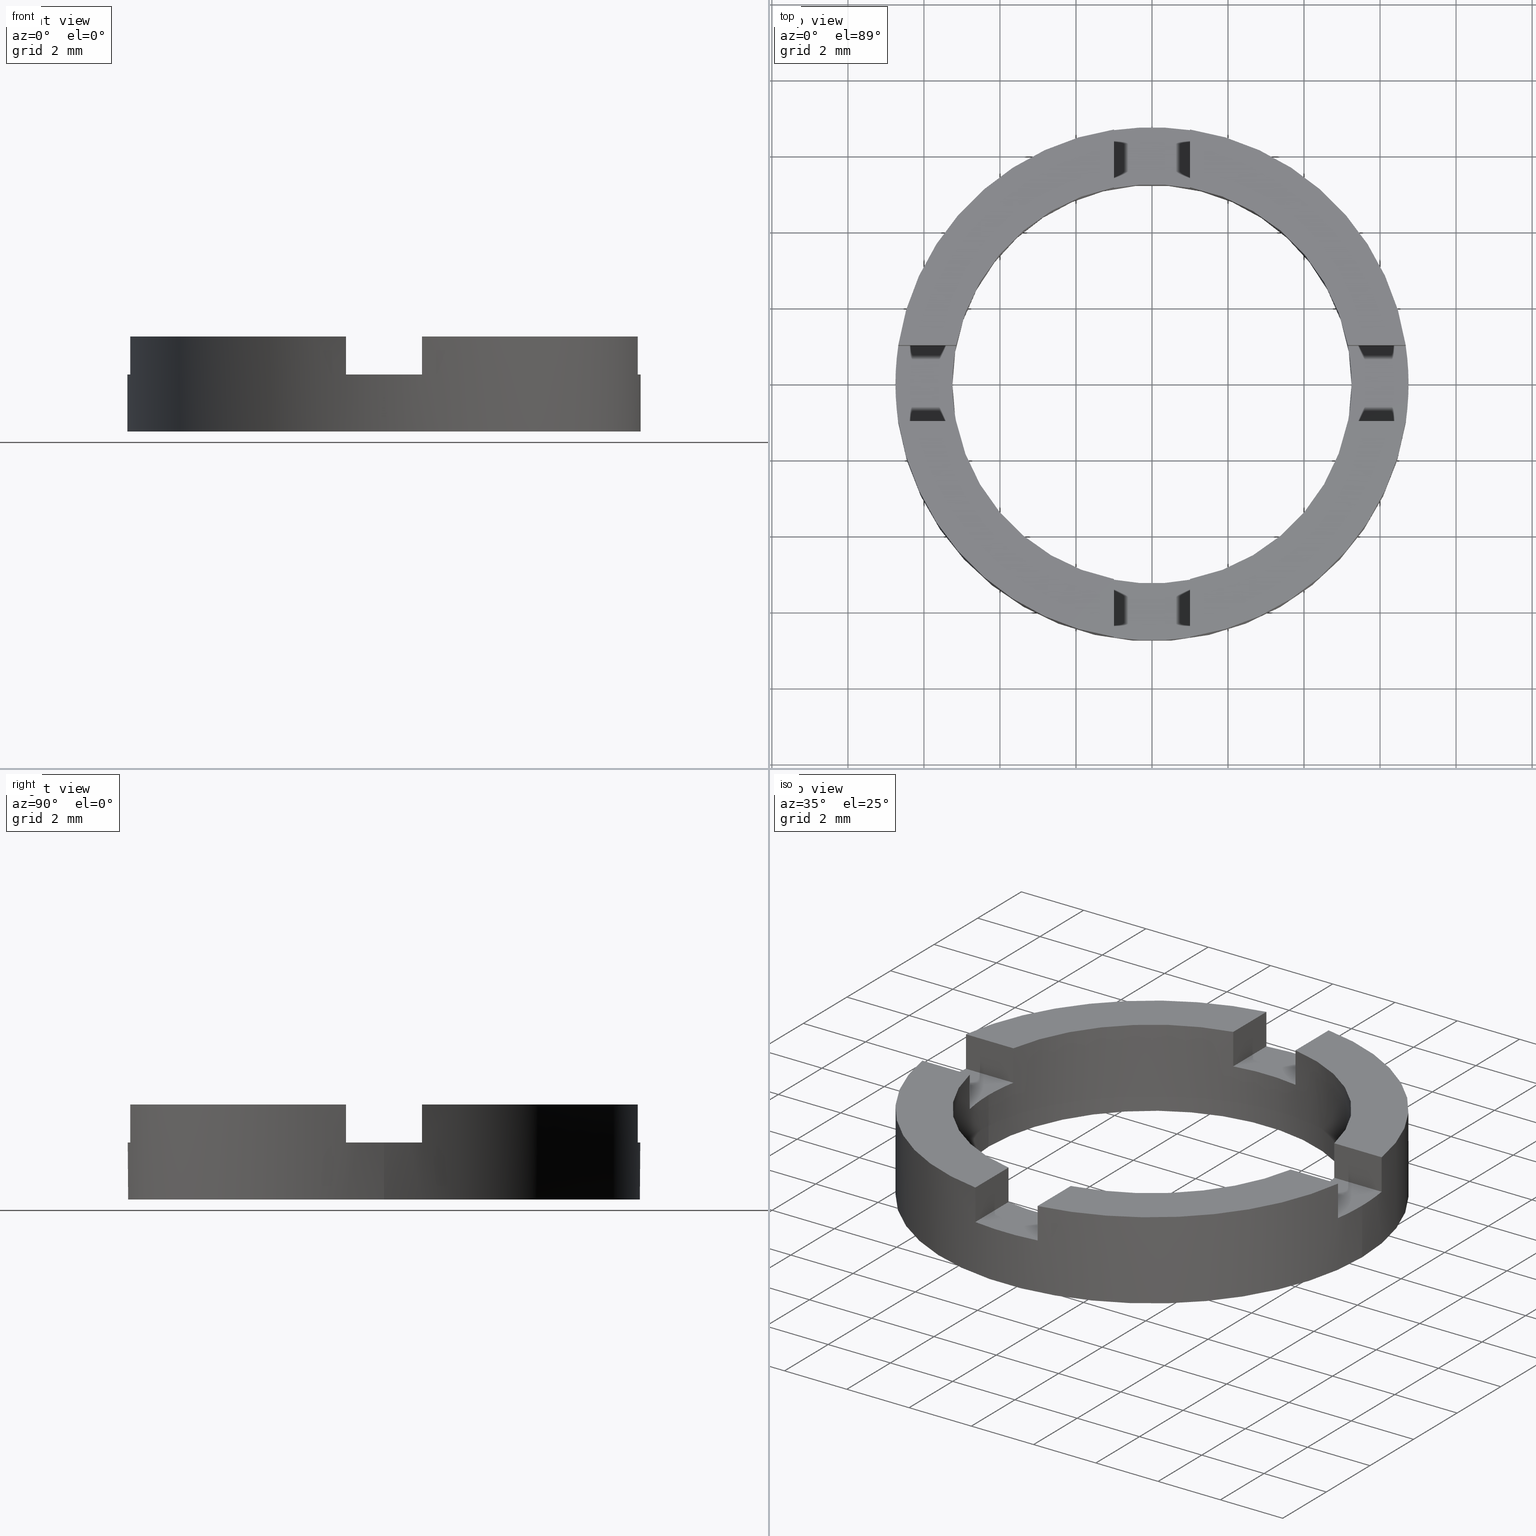
[diagram: canonical four-view strip — front | top / right | iso, engineering-drawing reading convention]
A machine part, canonical four-view strip (front | top / right | iso — engineering-drawing reading convention). The complete STEP part file that produces these views, byte-faithful:
ISO-10303-21;
HEADER;
FILE_DESCRIPTION (( 'STEP AP203' ),
    '1' );
FILE_NAME ('514034.step',
    '2024-12-26T02:31:14',
    ( 'MSI' ),
    ( '' ),
    'SwSTEP 2.0',
    'SolidWorks 2020',
    '' );
FILE_SCHEMA (( 'CONFIG_CONTROL_DESIGN' ));
ENDSEC;

DATA;
#1 = PERSON_AND_ORGANIZATION ( #391, #385 ) ;
#2 = COORDINATED_UNIVERSAL_TIME_OFFSET ( 8, 0, .AHEAD. ) ;
#3 = DIRECTION ( 'NONE',  ( 0.000000000000000000, 0.000000000000000000, 1.000000000000000000 ) ) ;
#4 = SHAPE_DEFINITION_REPRESENTATION ( #725, #18 ) ;
#5 = DIRECTION ( 'NONE',  ( -0.000000000000000000, -0.000000000000000000, 1.000000000000000000 ) ) ;
#6 = DATE_AND_TIME ( #531, #284 ) ;
#7 = CALENDAR_DATE ( 2024, 26, 12 ) ;
#8 = EDGE_CURVE ( 'NONE', #459, #230, #312, .T. ) ;
#9 = COORDINATED_UNIVERSAL_TIME_OFFSET ( 8, 0, .AHEAD. ) ;
#10 = DIRECTION ( 'NONE',  ( -0.000000000000000000, -0.000000000000000000, 1.000000000000000000 ) ) ;
#11 = APPROVAL_PERSON_ORGANIZATION ( #517, #501, #255 ) ;
#12 = DIRECTION ( 'NONE',  ( 1.000000000000000000, -3.726443022468696137E-15, 0.000000000000000000 ) ) ;
#13 = ADVANCED_FACE ( 'NONE', ( #46 ), #314, .F. ) ;
#14 = PLANE ( 'NONE',  #23 ) ;
#15 = PERSON_AND_ORGANIZATION ( #391, #385 ) ;
#16 = AXIS2_PLACEMENT_3D ( 'NONE', #192, #484, #525 ) ;
#17 = DATE_AND_TIME ( #512, #523 ) ;
#18 = ADVANCED_BREP_SHAPE_REPRESENTATION ( '514034', ( #499, #781 ), #626 ) ;
#19 = DIRECTION ( 'NONE',  ( 0.000000000000000000, 0.000000000000000000, 1.000000000000000000 ) ) ;
#20 = DATE_AND_TIME ( #270, #529 ) ;
#21 = DIRECTION ( 'NONE',  ( 1.000000000000000000, 0.000000000000000000, 0.000000000000000000 ) ) ;
#22 = DIRECTION ( 'NONE',  ( 1.000000000000000000, 0.000000000000000000, 0.000000000000000000 ) ) ;
#23 = AXIS2_PLACEMENT_3D ( 'NONE', #67, #147, #206 ) ;
#24 = CARTESIAN_POINT ( 'NONE',  ( 0.000000000000000000, 0.000000000000000000, 1.500000000000000000 ) ) ;
#25 = DIRECTION ( 'NONE',  ( 1.000000000000000000, 0.000000000000000000, 0.000000000000000000 ) ) ;
#26 = DIRECTION ( 'NONE',  ( 0.000000000000000000, -0.000000000000000000, -1.000000000000000000 ) ) ;
#27 = DIRECTION ( 'NONE',  ( 1.000000000000000000, -3.726443022468696137E-15, 0.000000000000000000 ) ) ;
#28 = CARTESIAN_POINT ( 'NONE',  ( -3.726443022468700081E-15, -1.000000000000001110, 1.500000000000000000 ) ) ;
#29 = EDGE_CURVE ( 'NONE', #228, #414, #557, .T. ) ;
#30 = DIRECTION ( 'NONE',  ( 1.000000000000000000, 0.000000000000000000, 0.000000000000000000 ) ) ;
#31 = CARTESIAN_POINT ( 'NONE',  ( 1.000000000000001332, 5.153882032022075066, 1.500000000000000000 ) ) ;
#32 = CC_DESIGN_PERSON_AND_ORGANIZATION_ASSIGNMENT ( #533, #247, ( #417 ) ) ;
#33 = DIRECTION ( 'NONE',  ( 1.000000000000000000, 0.000000000000000000, 0.000000000000000000 ) ) ;
#34 = AXIS2_PLACEMENT_3D ( 'NONE', #264, #398, #759 ) ;
#35 = EDGE_CURVE ( 'NONE', #691, #446, #556, .T. ) ;
#36 = CARTESIAN_POINT ( 'NONE',  ( 0.000000000000000000, 0.000000000000000000, 2.500000000000000000 ) ) ;
#37 = CARTESIAN_POINT ( 'NONE',  ( -5.250000000000000000, 0.000000000000000000, 0.000000000000000000 ) ) ;
#38 = VERTEX_POINT ( 'NONE', #301 ) ;
#39 = ORIENTED_EDGE ( 'NONE', *, *, #464, .F. ) ;
#40 = PLANE ( 'NONE',  #183 ) ;
#41 = FACE_BOUND ( 'NONE', #489, .T. ) ;
#42 = DIRECTION ( 'NONE',  ( -0.000000000000000000, -0.000000000000000000, 1.000000000000000000 ) ) ;
#43 = AXIS2_PLACEMENT_3D ( 'NONE', #646, #766, #162 ) ;
#44 = LINE ( 'NONE', #652, #329 ) ;
#45 = CIRCLE ( 'NONE', #547, 6.750000000000000000 ) ;
#46 = FACE_OUTER_BOUND ( 'NONE', #719, .T. ) ;
#47 = CARTESIAN_POINT ( 'NONE',  ( 0.000000000000000000, 0.000000000000000000, 1.500000000000000000 ) ) ;
#48 = LINE ( 'NONE', #218, #54 ) ;
#49 = VECTOR ( 'NONE', #491, 1000.000000000000000 ) ;
#50 = CC_DESIGN_SECURITY_CLASSIFICATION ( #577, ( #417 ) ) ;
#51 = VECTOR ( 'NONE', #27, 1000.000000000000000 ) ;
#52 = CARTESIAN_POINT ( 'NONE',  ( -3.726443022468700081E-15, -1.000000000000001110, 1.500000000000000000 ) ) ;
#53 = CC_DESIGN_PERSON_AND_ORGANIZATION_ASSIGNMENT ( #128, #302, ( #672 ) ) ;
#54 = VECTOR ( 'NONE', #160, 1000.000000000000000 ) ;
#55 = AXIS2_PLACEMENT_3D ( 'NONE', #100, #286, #506 ) ;
#56 = FACE_OUTER_BOUND ( 'NONE', #714, .T. ) ;
#57 = LINE ( 'NONE', #92, #328 ) ;
#58 = CIRCLE ( 'NONE', #34, 6.750000000000000000 ) ;
#59 = ADVANCED_FACE ( 'NONE', ( #576, #41 ), #14, .F. ) ;
#60 = FACE_OUTER_BOUND ( 'NONE', #146, .T. ) ;
#61 = APPROVAL_STATUS ( 'not_yet_approved' ) ;
#62 = LINE ( 'NONE', #161, #587 ) ;
#63 = PLANE ( 'NONE',  #540 ) ;
#64 = LINE ( 'NONE', #761, #51 ) ;
#65 = ORIENTED_EDGE ( 'NONE', *, *, #496, .T. ) ;
#66 = EDGE_CURVE ( 'NONE', #450, #174, #588, .T. ) ;
#67 = CARTESIAN_POINT ( 'NONE',  ( 0.000000000000000000, 0.000000000000000000, 0.000000000000000000 ) ) ;
#68 = FACE_OUTER_BOUND ( 'NONE', #486, .T. ) ;
#69 = EDGE_CURVE ( 'NONE', #336, #621, #58, .T. ) ;
#70 = DIRECTION ( 'NONE',  ( 0.000000000000000000, 0.000000000000000000, 1.000000000000000000 ) ) ;
#71 = VECTOR ( 'NONE', #141, 1000.000000000000000 ) ;
#72 = DIRECTION ( 'NONE',  ( 1.000000000000000000, 0.000000000000000000, -0.000000000000000000 ) ) ;
#73 = CYLINDRICAL_SURFACE ( 'NONE', #420, 5.250000000000000000 ) ;
#74 = VERTEX_POINT ( 'NONE', #554 ) ;
#75 = VECTOR ( 'NONE', #412, 1000.000000000000000 ) ;
#76 = DIRECTION ( 'NONE',  ( -0.000000000000000000, 0.000000000000000000, 1.000000000000000000 ) ) ;
#77 = VECTOR ( 'NONE', #776, 1000.000000000000000 ) ;
#78 = ORIENTED_EDGE ( 'NONE', *, *, #294, .F. ) ;
#79 = CC_DESIGN_DATE_AND_TIME_ASSIGNMENT ( #20, #252, ( #577 ) ) ;
#80 = VECTOR ( 'NONE', #235, 1000.000000000000000 ) ;
#81 = EDGE_LOOP ( 'NONE', ( #78, #720, #717, #387 ) ) ;
#82 = AXIS2_PLACEMENT_3D ( 'NONE', #747, #19, #764 ) ;
#83 = EDGE_CURVE ( 'NONE', #589, #209, #563, .T. ) ;
#84 = VECTOR ( 'NONE', #10, 1000.000000000000000 ) ;
#85 = EDGE_LOOP ( 'NONE', ( #687, #718, #748, #671 ) ) ;
#86 = CARTESIAN_POINT ( 'NONE',  ( 1.000000000000001332, 0.000000000000000000, 1.500000000000000000 ) ) ;
#87 = DIRECTION ( 'NONE',  ( -0.000000000000000000, -0.000000000000000000, 1.000000000000000000 ) ) ;
#88 = LINE ( 'NONE', #655, #118 ) ;
#89 = CARTESIAN_POINT ( 'NONE',  ( -0.9999999999999986677, -5.153882032022075954, 1.500000000000000000 ) ) ;
#90 = LINE ( 'NONE', #737, #84 ) ;
#91 = CIRCLE ( 'NONE', #692, 5.250000000000000000 ) ;
#92 = CARTESIAN_POINT ( 'NONE',  ( 5.250000000000000000, 6.429395695523604153E-16, 2.500000000000000000 ) ) ;
#93 = LINE ( 'NONE', #280, #635 ) ;
#94 = LINE ( 'NONE', #180, #602 ) ;
#95 = EDGE_LOOP ( 'NONE', ( #184, #704, #429, #188, #585, #220 ) ) ;
#96 = VECTOR ( 'NONE', #667, 1000.000000000000000 ) ;
#97 = AXIS2_PLACEMENT_3D ( 'NONE', #679, #195, #253 ) ;
#98 = FACE_OUTER_BOUND ( 'NONE', #122, .T. ) ;
#99 = EDGE_LOOP ( 'NONE', ( #723, #706, #479, #229 ) ) ;
#100 = CARTESIAN_POINT ( 'NONE',  ( 0.000000000000000000, 0.000000000000000000, 2.500000000000000000 ) ) ;
#101 = VECTOR ( 'NONE', #165, 1000.000000000000000 ) ;
#102 = VECTOR ( 'NONE', #231, 1000.000000000000000 ) ;
#103 = CARTESIAN_POINT ( 'NONE',  ( 3.758567531283077831E-15, 0.9999999999999988898, 2.500000000000000000 ) ) ;
#104 = CIRCLE ( 'NONE', #134, 6.750000000000000000 ) ;
#105 = LINE ( 'NONE', #409, #114 ) ;
#106 = CARTESIAN_POINT ( 'NONE',  ( 0.000000000000000000, 0.000000000000000000, 1.500000000000000000 ) ) ;
#107 = CIRCLE ( 'NONE', #419, 5.250000000000000000 ) ;
#108 = DIRECTION ( 'NONE',  ( 1.000000000000000000, 0.000000000000000000, 0.000000000000000000 ) ) ;
#109 = EDGE_CURVE ( 'NONE', #616, #487, #44, .T. ) ;
#110 = LINE ( 'NONE', #292, #77 ) ;
#111 = ORIENTED_EDGE ( 'NONE', *, *, #700, .F. ) ;
#112 = CARTESIAN_POINT ( 'NONE',  ( 6.675514961409347414, 0.9999999999999737987, 1.500000000000000000 ) ) ;
#113 = VECTOR ( 'NONE', #5, 1000.000000000000000 ) ;
#114 = VECTOR ( 'NONE', #573, 1000.000000000000000 ) ;
#115 = ORIENTED_EDGE ( 'NONE', *, *, #258, .F. ) ;
#116 = DIRECTION ( 'NONE',  ( -0.000000000000000000, -0.000000000000000000, 1.000000000000000000 ) ) ;
#117 = ADVANCED_FACE ( 'NONE', ( #327 ), #215, .T. ) ;
#118 = VECTOR ( 'NONE', #116, 1000.000000000000000 ) ;
#119 = ORIENTED_EDGE ( 'NONE', *, *, #782, .F. ) ;
#120 = ORIENTED_EDGE ( 'NONE', *, *, #683, .T. ) ;
#121 = VECTOR ( 'NONE', #42, 1000.000000000000000 ) ;
#122 = EDGE_LOOP ( 'NONE', ( #477, #193, #169, #191 ) ) ;
#123 = DIRECTION ( 'NONE',  ( 1.000000000000000000, 0.000000000000000000, 0.000000000000000000 ) ) ;
#124 = ORIENTED_EDGE ( 'NONE', *, *, #415, .F. ) ;
#125 = CARTESIAN_POINT ( 'NONE',  ( 1.000000000000001332, 6.675514961409343861, 2.500000000000000000 ) ) ;
#126 = ORIENTED_EDGE ( 'NONE', *, *, #684, .F. ) ;
#127 = EDGE_CURVE ( 'NONE', #320, #209, #565, .T. ) ;
#128 = PERSON_AND_ORGANIZATION ( #391, #385 ) ;
#129 = CARTESIAN_POINT ( 'NONE',  ( -3.726443022468700081E-15, -1.000000000000001110, 2.500000000000000000 ) ) ;
#130 = CIRCLE ( 'NONE', #527, 5.250000000000000000 ) ;
#131 = CIRCLE ( 'NONE', #178, 6.750000000000000000 ) ;
#132 = PLANE ( 'NONE',  #375 ) ;
#133 = DIRECTION ( 'NONE',  ( 1.000000000000000000, 0.000000000000000000, 0.000000000000000000 ) ) ;
#134 = AXIS2_PLACEMENT_3D ( 'NONE', #705, #771, #33 ) ;
#135 = CARTESIAN_POINT ( 'NONE',  ( 1.000000000000001332, 6.675514961409343861, 1.500000000000000000 ) ) ;
#136 = EDGE_LOOP ( 'NONE', ( #119, #202, #726, #380, #124, #386, #636, #111, #742, #743, #460, #666 ) ) ;
#137 = CARTESIAN_POINT ( 'NONE',  ( 0.000000000000000000, 0.000000000000000000, 2.500000000000000000 ) ) ;
#138 = DIRECTION ( 'NONE',  ( -0.000000000000000000, -0.000000000000000000, -1.000000000000000000 ) ) ;
#139 = DIRECTION ( 'NONE',  ( 0.000000000000000000, 0.000000000000000000, 1.000000000000000000 ) ) ;
#140 = AXIS2_PLACEMENT_3D ( 'NONE', #663, #30, #780 ) ;
#141 = DIRECTION ( 'NONE',  ( -0.000000000000000000, -0.000000000000000000, 1.000000000000000000 ) ) ;
#142 =( NAMED_UNIT ( * ) SI_UNIT ( $, .STERADIAN. ) SOLID_ANGLE_UNIT ( ) );
#143 = AXIS2_PLACEMENT_3D ( 'NONE', #24, #500, #690 ) ;
#144 = ADVANCED_FACE ( 'NONE', ( #68 ), #559, .T. ) ;
#145 = CARTESIAN_POINT ( 'NONE',  ( -3.726443022468700081E-15, -1.000000000000001110, 2.500000000000000000 ) ) ;
#146 = EDGE_LOOP ( 'NONE', ( #642, #472, #186, #632, #458, #389, #400, #441, #126, #648, #651, #712 ) ) ;
#147 = DIRECTION ( 'NONE',  ( 0.000000000000000000, 0.000000000000000000, 1.000000000000000000 ) ) ;
#148 = CARTESIAN_POINT ( 'NONE',  ( -6.675514961409340309, 1.000000000000023981, 1.500000000000000000 ) ) ;
#149 = CC_DESIGN_DATE_AND_TIME_ASSIGNMENT ( #260, #471, ( #351 ) ) ;
#150 = ORIENTED_EDGE ( 'NONE', *, *, #404, .T. ) ;
#151 = PLANE ( 'NONE',  #435 ) ;
#152 = EDGE_CURVE ( 'NONE', #174, #450, #579, .T. ) ;
#153 = ORIENTED_EDGE ( 'NONE', *, *, #545, .T. ) ;
#154 = EDGE_CURVE ( 'NONE', #461, #621, #48, .T. ) ;
#155 = ORIENTED_EDGE ( 'NONE', *, *, #611, .F. ) ;
#156 = ORIENTED_EDGE ( 'NONE', *, *, #66, .T. ) ;
#157 = ADVANCED_FACE ( 'NONE', ( #560 ), #151, .F. ) ;
#158 = DIRECTION ( 'NONE',  ( 1.000000000000000000, 0.000000000000000000, 0.000000000000000000 ) ) ;
#159 = EDGE_CURVE ( 'NONE', #650, #201, #570, .T. ) ;
#160 = DIRECTION ( 'NONE',  ( -0.000000000000000000, -0.000000000000000000, -1.000000000000000000 ) ) ;
#161 = CARTESIAN_POINT ( 'NONE',  ( -0.9999999999999986677, 0.000000000000000000, 1.500000000000000000 ) ) ;
#162 = DIRECTION ( 'NONE',  ( 1.000000000000000000, 0.000000000000000000, 0.000000000000000000 ) ) ;
#163 = DIRECTION ( 'NONE',  ( 1.000000000000000000, -3.758567531283081775E-15, 0.000000000000000000 ) ) ;
#164 = ORIENTED_EDGE ( 'NONE', *, *, #8, .F. ) ;
#165 = DIRECTION ( 'NONE',  ( 1.000000000000000000, -3.758567531283081775E-15, 0.000000000000000000 ) ) ;
#166 = AXIS2_PLACEMENT_3D ( 'NONE', #736, #76, #649 ) ;
#167 = ORIENTED_EDGE ( 'NONE', *, *, #109, .T. ) ;
#168 = CARTESIAN_POINT ( 'NONE',  ( 0.000000000000000000, 0.000000000000000000, 1.500000000000000000 ) ) ;
#169 = ORIENTED_EDGE ( 'NONE', *, *, #339, .F. ) ;
#170 = CARTESIAN_POINT ( 'NONE',  ( -0.9999999999999986677, 0.000000000000000000, 1.500000000000000000 ) ) ;
#171 = ORIENTED_EDGE ( 'NONE', *, *, #504, .F. ) ;
#172 = ORIENTED_EDGE ( 'NONE', *, *, #684, .T. ) ;
#173 = CARTESIAN_POINT ( 'NONE',  ( -0.9999999999999986677, 6.675514961409343861, 1.500000000000000000 ) ) ;
#174 = VERTEX_POINT ( 'NONE', #696 ) ;
#175 = PRODUCT_RELATED_PRODUCT_CATEGORY ( 'detail', '', ( #672 ) ) ;
#176 = ORIENTED_EDGE ( 'NONE', *, *, #404, .F. ) ;
#177 = CARTESIAN_POINT ( 'NONE',  ( 6.675514961409340309, -1.000000000000025979, 2.500000000000000000 ) ) ;
#178 = AXIS2_PLACEMENT_3D ( 'NONE', #190, #676, #377 ) ;
#179 = CARTESIAN_POINT ( 'NONE',  ( 3.758567531283077831E-15, 0.9999999999999988898, 2.500000000000000000 ) ) ;
#180 = CARTESIAN_POINT ( 'NONE',  ( 3.758567531283077831E-15, 0.9999999999999988898, 1.500000000000000000 ) ) ;
#181 = CARTESIAN_POINT ( 'NONE',  ( 3.758567531283077831E-15, 0.9999999999999988898, 1.500000000000000000 ) ) ;
#182 = EDGE_CURVE ( 'NONE', #689, #480, #306, .T. ) ;
#183 = AXIS2_PLACEMENT_3D ( 'NONE', #181, #293, #361 ) ;
#184 = ORIENTED_EDGE ( 'NONE', *, *, #276, .F. ) ;
#185 = PLANE ( 'NONE',  #224 ) ;
#186 = ORIENTED_EDGE ( 'NONE', *, *, #66, .F. ) ;
#187 = VERTEX_POINT ( 'NONE', #549 ) ;
#188 = ORIENTED_EDGE ( 'NONE', *, *, #226, .T. ) ;
#189 = ORIENTED_EDGE ( 'NONE', *, *, #240, .T. ) ;
#190 = CARTESIAN_POINT ( 'NONE',  ( 0.000000000000000000, 0.000000000000000000, 1.500000000000000000 ) ) ;
#191 = ORIENTED_EDGE ( 'NONE', *, *, #127, .T. ) ;
#192 = CARTESIAN_POINT ( 'NONE',  ( 0.000000000000000000, 0.000000000000000000, 1.500000000000000000 ) ) ;
#193 = ORIENTED_EDGE ( 'NONE', *, *, #35, .F. ) ;
#194 = EDGE_CURVE ( 'NONE', #691, #750, #303, .T. ) ;
#195 = DIRECTION ( 'NONE',  ( 1.000000000000000000, 0.000000000000000000, 0.000000000000000000 ) ) ;
#196 = VERTEX_POINT ( 'NONE', #273 ) ;
#197 = ADVANCED_FACE ( 'NONE', ( #590 ), #752, .T. ) ;
#198 = VERTEX_POINT ( 'NONE', #619 ) ;
#199 = ORIENTED_EDGE ( 'NONE', *, *, #276, .T. ) ;
#200 = PERSON_AND_ORGANIZATION_ROLE ( 'creator' ) ;
#201 = VERTEX_POINT ( 'NONE', #697 ) ;
#202 = ORIENTED_EDGE ( 'NONE', *, *, #733, .T. ) ;
#203 = DIRECTION ( 'NONE',  ( 0.000000000000000000, 0.000000000000000000, 1.000000000000000000 ) ) ;
#204 = ORIENTED_EDGE ( 'NONE', *, *, #29, .T. ) ;
#205 = ORIENTED_EDGE ( 'NONE', *, *, #658, .T. ) ;
#206 = DIRECTION ( 'NONE',  ( 1.000000000000000000, 0.000000000000000000, -0.000000000000000000 ) ) ;
#207 = CARTESIAN_POINT ( 'NONE',  ( 0.000000000000000000, 0.000000000000000000, 0.000000000000000000 ) ) ;
#208 = AXIS2_PLACEMENT_3D ( 'NONE', #622, #434, #305 ) ;
#209 = VERTEX_POINT ( 'NONE', #681 ) ;
#210 = DIRECTION ( 'NONE',  ( -0.000000000000000000, -0.000000000000000000, 1.000000000000000000 ) ) ;
#211 = ORIENTED_EDGE ( 'NONE', *, *, #478, .F. ) ;
#212 = ORIENTED_EDGE ( 'NONE', *, *, #436, .F. ) ;
#213 = DIRECTION ( 'NONE',  ( 0.000000000000000000, 0.000000000000000000, -1.000000000000000000 ) ) ;
#214 = DIRECTION ( 'NONE',  ( 0.000000000000000000, 0.000000000000000000, -1.000000000000000000 ) ) ;
#215 = PLANE ( 'NONE',  #767 ) ;
#216 = AXIS2_PLACEMENT_3D ( 'NONE', #774, #26, #578 ) ;
#217 = CARTESIAN_POINT ( 'NONE',  ( 1.000000000000001332, 6.675514961409343861, 1.500000000000000000 ) ) ;
#218 = CARTESIAN_POINT ( 'NONE',  ( -6.750000000000000000, 0.000000000000000000, 2.500000000000000000 ) ) ;
#219 = ORIENTED_EDGE ( 'NONE', *, *, #658, .F. ) ;
#220 = ORIENTED_EDGE ( 'NONE', *, *, #693, .T. ) ;
#221 = EDGE_LOOP ( 'NONE', ( #219, #171, #199, #65 ) ) ;
#222 = AXIS2_PLACEMENT_3D ( 'NONE', #592, #3, #298 ) ;
#223 = ORIENTED_EDGE ( 'NONE', *, *, #498, .T. ) ;
#224 = AXIS2_PLACEMENT_3D ( 'NONE', #246, #558, #701 ) ;
#225 = DIRECTION ( 'NONE',  ( -1.000000000000000000, 0.000000000000000000, 0.000000000000000000 ) ) ;
#226 = EDGE_CURVE ( 'NONE', #616, #187, #64, .T. ) ;
#227 = CARTESIAN_POINT ( 'NONE',  ( -0.9999999999999986677, -6.675514961409343861, 2.500000000000000000 ) ) ;
#228 = VERTEX_POINT ( 'NONE', #89 ) ;
#229 = ORIENTED_EDGE ( 'NONE', *, *, #443, .T. ) ;
#230 = VERTEX_POINT ( 'NONE', #269 ) ;
#231 = DIRECTION ( 'NONE',  ( -0.000000000000000000, -0.000000000000000000, 1.000000000000000000 ) ) ;
#232 = ORIENTED_EDGE ( 'NONE', *, *, #194, .F. ) ;
#233 = ORIENTED_EDGE ( 'NONE', *, *, #498, .F. ) ;
#234 = CARTESIAN_POINT ( 'NONE',  ( 3.758567531283077831E-15, 0.9999999999999988898, 1.500000000000000000 ) ) ;
#235 = DIRECTION ( 'NONE',  ( 0.000000000000000000, 1.000000000000000000, -0.000000000000000000 ) ) ;
#236 = ORIENTED_EDGE ( 'NONE', *, *, #783, .F. ) ;
#237 = ORIENTED_EDGE ( 'NONE', *, *, #152, .T. ) ;
#238 = DIRECTION ( 'NONE',  ( -0.000000000000000000, -0.000000000000000000, 1.000000000000000000 ) ) ;
#239 = EDGE_CURVE ( 'NONE', #449, #463, #330, .T. ) ;
#240 = EDGE_CURVE ( 'NONE', #381, #414, #594, .T. ) ;
#241 = ORIENTED_EDGE ( 'NONE', *, *, #413, .F. ) ;
#242 = ADVANCED_FACE ( 'NONE', ( #56 ), #439, .T. ) ;
#243 = ORIENTED_EDGE ( 'NONE', *, *, #611, .T. ) ;
#244 = CARTESIAN_POINT ( 'NONE',  ( -0.9999999999999986677, -5.153882032022075954, 2.500000000000000000 ) ) ;
#245 = DIRECTION ( 'NONE',  ( 1.000000000000000000, -3.758567531283081775E-15, 0.000000000000000000 ) ) ;
#246 = CARTESIAN_POINT ( 'NONE',  ( 0.000000000000000000, 0.000000000000000000, 1.500000000000000000 ) ) ;
#247 = PERSON_AND_ORGANIZATION_ROLE ( 'creator' ) ;
#248 = CARTESIAN_POINT ( 'NONE',  ( -6.675514961409340309, 1.000000000000023981, 1.500000000000000000 ) ) ;
#249 = CC_DESIGN_APPROVAL ( #359, ( #577 ) ) ;
#250 = EDGE_CURVE ( 'NONE', #230, #74, #45, .T. ) ;
#251 = CARTESIAN_POINT ( 'NONE',  ( 0.000000000000000000, 0.000000000000000000, 1.500000000000000000 ) ) ;
#252 = DATE_TIME_ROLE ( 'classification_date' ) ;
#253 = DIRECTION ( 'NONE',  ( 0.000000000000000000, 0.000000000000000000, -1.000000000000000000 ) ) ;
#254 = CARTESIAN_POINT ( 'NONE',  ( 6.675514961409340309, -1.000000000000025979, 1.500000000000000000 ) ) ;
#255 = APPROVAL_ROLE ( '' ) ;
#256 = AXIS2_PLACEMENT_3D ( 'NONE', #513, #662, #518 ) ;
#257 = DIRECTION ( 'NONE',  ( 0.000000000000000000, 0.000000000000000000, 1.000000000000000000 ) ) ;
#258 = EDGE_CURVE ( 'NONE', #198, #463, #324, .T. ) ;
#259 = ADVANCED_FACE ( 'NONE', ( #568 ), #401, .T. ) ;
#260 = DATE_AND_TIME ( #7, #779 ) ;
#261 = APPROVAL_PERSON_ORGANIZATION ( #268, #359, #537 ) ;
#262 = APPLICATION_CONTEXT ( 'configuration controlled 3d designs of mechanical parts and assemblies' ) ;
#263 = CARTESIAN_POINT ( 'NONE',  ( 0.000000000000000000, 0.000000000000000000, 1.500000000000000000 ) ) ;
#264 = CARTESIAN_POINT ( 'NONE',  ( 0.000000000000000000, 0.000000000000000000, 0.000000000000000000 ) ) ;
#265 = APPROVAL_DATE_TIME ( #281, #501 ) ;
#266 = AXIS2_PLACEMENT_3D ( 'NONE', #307, #497, #749 ) ;
#267 = EDGE_CURVE ( 'NONE', #480, #463, #309, .T. ) ;
#268 = PERSON_AND_ORGANIZATION ( #391, #385 ) ;
#269 = CARTESIAN_POINT ( 'NONE',  ( -0.9999999999999986677, 6.675514961409343861, 2.500000000000000000 ) ) ;
#270 = CALENDAR_DATE ( 2024, 26, 12 ) ;
#271 = CC_DESIGN_PERSON_AND_ORGANIZATION_ASSIGNMENT ( #511, #200, ( #351 ) ) ;
#272 = COORDINATED_UNIVERSAL_TIME_OFFSET ( 8, 0, .AHEAD. ) ;
#273 = CARTESIAN_POINT ( 'NONE',  ( -0.9999999999999986677, -6.675514961409343861, 1.500000000000000000 ) ) ;
#274 = CARTESIAN_POINT ( 'NONE',  ( 0.000000000000000000, 0.000000000000000000, 2.500000000000000000 ) ) ;
#275 = ADVANCED_FACE ( 'NONE', ( #60 ), #73, .F. ) ;
#276 = EDGE_CURVE ( 'NONE', #599, #383, #318, .T. ) ;
#277 = LOCAL_TIME ( 10, 31, 14.00000000000000000, #526 ) ;
#278 = CARTESIAN_POINT ( 'NONE',  ( 5.153882032022079507, 0.9999999999999796829, 1.500000000000000000 ) ) ;
#279 = CALENDAR_DATE ( 2024, 26, 12 ) ;
#280 = CARTESIAN_POINT ( 'NONE',  ( -5.250000000000000000, 0.000000000000000000, 2.500000000000000000 ) ) ;
#281 = DATE_AND_TIME ( #279, #277 ) ;
#282 = CC_DESIGN_PERSON_AND_ORGANIZATION_ASSIGNMENT ( #15, #778, ( #577 ) ) ;
#283 = CARTESIAN_POINT ( 'NONE',  ( 1.000000000000001332, -6.675514961409343861, 1.500000000000000000 ) ) ;
#284 = LOCAL_TIME ( 10, 31, 14.00000000000000000, #521 ) ;
#285 = EDGE_CURVE ( 'NONE', #376, #174, #57, .T. ) ;
#286 = DIRECTION ( 'NONE',  ( -0.000000000000000000, -0.000000000000000000, -1.000000000000000000 ) ) ;
#287 = AXIS2_PLACEMENT_3D ( 'NONE', #274, #653, #467 ) ;
#288 = DIRECTION ( 'NONE',  ( -0.000000000000000000, -0.000000000000000000, 1.000000000000000000 ) ) ;
#289 = CARTESIAN_POINT ( 'NONE',  ( -3.726443022468700081E-15, -1.000000000000001110, 1.500000000000000000 ) ) ;
#290 = CARTESIAN_POINT ( 'NONE',  ( 6.675514961409347414, 0.9999999999999737987, 2.500000000000000000 ) ) ;
#291 = ADVANCED_FACE ( 'NONE', ( #580 ), #645, .T. ) ;
#292 = CARTESIAN_POINT ( 'NONE',  ( 6.750000000000000000, 8.266365894244634333E-16, 2.500000000000000000 ) ) ;
#293 = DIRECTION ( 'NONE',  ( -3.758567531283081775E-15, -1.000000000000000000, 0.000000000000000000 ) ) ;
#294 = EDGE_CURVE ( 'NONE', #581, #727, #62, .T. ) ;
#295 = CARTESIAN_POINT ( 'NONE',  ( -0.9999999999999986677, -6.675514961409343861, 1.500000000000000000 ) ) ;
#296 = APPROVAL_STATUS ( 'not_yet_approved' ) ;
#297 = DIRECTION ( 'NONE',  ( 1.000000000000000000, 0.000000000000000000, 0.000000000000000000 ) ) ;
#298 = DIRECTION ( 'NONE',  ( 1.000000000000000000, 0.000000000000000000, 0.000000000000000000 ) ) ;
#299 = APPLICATION_PROTOCOL_DEFINITION ( 'international standard', 'config_control_design', 1994, #262 ) ;
#300 = CARTESIAN_POINT ( 'NONE',  ( 0.000000000000000000, 0.000000000000000000, 2.500000000000000000 ) ) ;
#301 = CARTESIAN_POINT ( 'NONE',  ( 1.000000000000001332, -6.675514961409343861, 2.500000000000000000 ) ) ;
#302 = PERSON_AND_ORGANIZATION_ROLE ( 'design_owner' ) ;
#303 = CIRCLE ( 'NONE', #143, 6.750000000000000000 ) ;
#304 = CARTESIAN_POINT ( 'NONE',  ( 1.000000000000001332, 0.000000000000000000, 2.500000000000000000 ) ) ;
#305 = DIRECTION ( 'NONE',  ( 1.000000000000000000, 0.000000000000000000, 0.000000000000000000 ) ) ;
#306 = LINE ( 'NONE', #316, #584 ) ;
#307 = CARTESIAN_POINT ( 'NONE',  ( 0.000000000000000000, 0.000000000000000000, 0.000000000000000000 ) ) ;
#308 = APPROVAL_ROLE ( '' ) ;
#309 = LINE ( 'NONE', #217, #593 ) ;
#310 = CARTESIAN_POINT ( 'NONE',  ( -0.9999999999999986677, 0.000000000000000000, 2.500000000000000000 ) ) ;
#311 = EDGE_CURVE ( 'NONE', #461, #616, #349, .T. ) ;
#312 = LINE ( 'NONE', #546, #317 ) ;
#313 = EDGE_CURVE ( 'NONE', #187, #373, #91, .T. ) ;
#314 = CYLINDRICAL_SURFACE ( 'NONE', #664, 5.250000000000000000 ) ;
#315 = ADVANCED_FACE ( 'NONE', ( #358 ), #699, .T. ) ;
#316 = CARTESIAN_POINT ( 'NONE',  ( 1.000000000000001332, 0.000000000000000000, 1.500000000000000000 ) ) ;
#317 = VECTOR ( 'NONE', #677, 1000.000000000000000 ) ;
#318 = LINE ( 'NONE', #510, #572 ) ;
#319 = DIRECTION ( 'NONE',  ( 1.000000000000000000, 0.000000000000000000, 0.000000000000000000 ) ) ;
#320 = VERTEX_POINT ( 'NONE', #769 ) ;
#321 = ADVANCED_FACE ( 'NONE', ( #605 ), #624, .T. ) ;
#322 = VECTOR ( 'NONE', #541, 1000.000000000000000 ) ;
#323 = DIRECTION ( 'NONE',  ( 1.000000000000000000, 0.000000000000000000, -0.000000000000000000 ) ) ;
#324 = LINE ( 'NONE', #304, #335 ) ;
#325 = AXIS2_PLACEMENT_3D ( 'NONE', #538, #543, #214 ) ;
#326 = DIRECTION ( 'NONE',  ( -0.000000000000000000, -0.000000000000000000, 1.000000000000000000 ) ) ;
#327 = FACE_OUTER_BOUND ( 'NONE', #647, .T. ) ;
#328 = VECTOR ( 'NONE', #399, 1000.000000000000000 ) ;
#329 = VECTOR ( 'NONE', #396, 1000.000000000000000 ) ;
#330 = CIRCLE ( 'NONE', #455, 6.750000000000000000 ) ;
#331 = ORIENTED_EDGE ( 'NONE', *, *, #294, .T. ) ;
#332 = DIRECTION ( 'NONE',  ( -0.000000000000000000, -0.000000000000000000, -1.000000000000000000 ) ) ;
#333 = ORIENTED_EDGE ( 'NONE', *, *, #339, .T. ) ;
#334 = ORIENTED_EDGE ( 'NONE', *, *, #182, .F. ) ;
#335 = VECTOR ( 'NONE', #493, 1000.000000000000000 ) ;
#336 = VERTEX_POINT ( 'NONE', #550 ) ;
#337 = DIRECTION ( 'NONE',  ( -0.000000000000000000, 0.000000000000000000, 1.000000000000000000 ) ) ;
#338 = ORIENTED_EDGE ( 'NONE', *, *, #629, .F. ) ;
#339 = EDGE_CURVE ( 'NONE', #320, #691, #353, .T. ) ;
#340 = VECTOR ( 'NONE', #87, 1000.000000000000000 ) ;
#341 = LINE ( 'NONE', #744, #113 ) ;
#342 = LINE ( 'NONE', #418, #363 ) ;
#343 = DIRECTION ( 'NONE',  ( 1.000000000000000000, 7.105427357601001859E-15, 0.000000000000000000 ) ) ;
#344 = FACE_OUTER_BOUND ( 'NONE', #85, .T. ) ;
#345 = DIRECTION ( 'NONE',  ( 0.000000000000000000, -0.000000000000000000, -1.000000000000000000 ) ) ;
#346 = DIRECTION ( 'NONE',  ( -0.000000000000000000, -0.000000000000000000, -1.000000000000000000 ) ) ;
#347 = CIRCLE ( 'NONE', #711, 5.250000000000000000 ) ;
#348 = VERTEX_POINT ( 'NONE', #278 ) ;
#349 = CIRCLE ( 'NONE', #756, 6.750000000000000000 ) ;
#350 = DIRECTION ( 'NONE',  ( 1.000000000000000000, -3.726443022468696137E-15, 0.000000000000000000 ) ) ;
#351 = PRODUCT_DEFINITION ( 'δ֪', '', #417, #777 ) ;
#352 = LINE ( 'NONE', #170, #80 ) ;
#353 = LINE ( 'NONE', #28, #75 ) ;
#354 = CARTESIAN_POINT ( 'NONE',  ( -6.750000000000000000, 0.000000000000000000, 1.500000000000000000 ) ) ;
#355 = FACE_OUTER_BOUND ( 'NONE', #575, .T. ) ;
#356 = VECTOR ( 'NONE', #210, 1000.000000000000000 ) ;
#357 = VECTOR ( 'NONE', #770, 1000.000000000000000 ) ;
#358 = FACE_OUTER_BOUND ( 'NONE', #221, .T. ) ;
#359 = APPROVAL ( #61, 'δָ��' ) ;
#360 = VECTOR ( 'NONE', #350, 1000.000000000000000 ) ;
#361 = DIRECTION ( 'NONE',  ( 1.000000000000000000, -3.758567531283081775E-15, 0.000000000000000000 ) ) ;
#362 = EDGE_CURVE ( 'NONE', #459, #740, #347, .T. ) ;
#363 = VECTOR ( 'NONE', #773, 1000.000000000000000 ) ;
#364 = CIRCLE ( 'NONE', #490, 6.750000000000000000 ) ;
#365 = CARTESIAN_POINT ( 'NONE',  ( -6.675514961409347414, -0.9999999999999761302, 2.500000000000000000 ) ) ;
#366 = LINE ( 'NONE', #295, #96 ) ;
#367 = VECTOR ( 'NONE', #238, 1000.000000000000000 ) ;
#368 = DIRECTION ( 'NONE',  ( -3.726443022468696137E-15, -1.000000000000000000, 0.000000000000000000 ) ) ;
#369 = LINE ( 'NONE', #179, #631 ) ;
#370 = APPLICATION_CONTEXT ( 'configuration controlled 3d designs of mechanical parts and assemblies' ) ;
#371 = LINE ( 'NONE', #425, #357 ) ;
#372 = CIRCLE ( 'NONE', #669, 6.750000000000000000 ) ;
#373 = VERTEX_POINT ( 'NONE', #703 ) ;
#374 = LINE ( 'NONE', #571, #613 ) ;
#375 = AXIS2_PLACEMENT_3D ( 'NONE', #289, #368, #708 ) ;
#376 = VERTEX_POINT ( 'NONE', #562 ) ;
#377 = DIRECTION ( 'NONE',  ( 1.000000000000000000, 0.000000000000000000, 0.000000000000000000 ) ) ;
#378 = EDGE_CURVE ( 'NONE', #196, #228, #352, .T. ) ;
#379 = FACE_OUTER_BOUND ( 'NONE', #475, .T. ) ;
#380 = ORIENTED_EDGE ( 'NONE', *, *, #154, .F. ) ;
#381 = VERTEX_POINT ( 'NONE', #227 ) ;
#382 = FACE_OUTER_BOUND ( 'NONE', #643, .T. ) ;
#383 = VERTEX_POINT ( 'NONE', #661 ) ;
#384 = EDGE_LOOP ( 'NONE', ( #674, #762 ) ) ;
#385 = ORGANIZATION ( 'δָ��', 'δָ��', '' ) ;
#386 = ORIENTED_EDGE ( 'NONE', *, *, #504, .T. ) ;
#387 = ORIENTED_EDGE ( 'NONE', *, *, #755, .T. ) ;
#388 = FACE_OUTER_BOUND ( 'NONE', #454, .T. ) ;
#389 = ORIENTED_EDGE ( 'NONE', *, *, #502, .T. ) ;
#390 = AXIS2_PLACEMENT_3D ( 'NONE', #507, #451, #158 ) ;
#391 = PERSON ( 'δָ��', 'δָ��', 'δָ��', ('δָ��'), ('δָ��'), ('δָ��') ) ;
#392 = CIRCLE ( 'NONE', #16, 6.750000000000000000 ) ;
#393 = APPROVAL_STATUS ( 'not_yet_approved' ) ;
#394 = ORIENTED_EDGE ( 'NONE', *, *, #362, .F. ) ;
#395 = PLANE ( 'NONE',  #567 ) ;
#396 = DIRECTION ( 'NONE',  ( -0.000000000000000000, -0.000000000000000000, 1.000000000000000000 ) ) ;
#397 = AXIS2_PLACEMENT_3D ( 'NONE', #555, #345, #713 ) ;
#398 = DIRECTION ( 'NONE',  ( 0.000000000000000000, 0.000000000000000000, 1.000000000000000000 ) ) ;
#399 = DIRECTION ( 'NONE',  ( -0.000000000000000000, -0.000000000000000000, -1.000000000000000000 ) ) ;
#400 = ORIENTED_EDGE ( 'NONE', *, *, #768, .T. ) ;
#401 = PLANE ( 'NONE',  #582 ) ;
#402 = CARTESIAN_POINT ( 'NONE',  ( 5.153882032022072401, -1.000000000000020428, 1.500000000000000000 ) ) ;
#403 = CARTESIAN_POINT ( 'NONE',  ( 5.153882032022079507, 0.9999999999999796829, 2.500000000000000000 ) ) ;
#404 = EDGE_CURVE ( 'NONE', #581, #459, #374, .T. ) ;
#405 = CARTESIAN_POINT ( 'NONE',  ( 0.000000000000000000, 0.000000000000000000, 2.500000000000000000 ) ) ;
#406 = VERTEX_POINT ( 'NONE', #403 ) ;
#407 = CARTESIAN_POINT ( 'NONE',  ( -0.9999999999999986677, 5.153882032022075954, 1.500000000000000000 ) ) ;
#408 = ORIENTED_EDGE ( 'NONE', *, *, #109, .F. ) ;
#409 = CARTESIAN_POINT ( 'NONE',  ( 1.000000000000001332, -5.153882032022075066, 1.500000000000000000 ) ) ;
#410 = ORIENTED_EDGE ( 'NONE', *, *, #741, .F. ) ;
#411 = ORIENTED_EDGE ( 'NONE', *, *, #660, .T. ) ;
#412 = DIRECTION ( 'NONE',  ( 1.000000000000000000, -3.726443022468696137E-15, 0.000000000000000000 ) ) ;
#413 = EDGE_CURVE ( 'NONE', #348, #376, #601, .T. ) ;
#414 = VERTEX_POINT ( 'NONE', #244 ) ;
#415 = EDGE_CURVE ( 'NONE', #599, #461, #104, .T. ) ;
#416 = CARTESIAN_POINT ( 'NONE',  ( -6.675514961409347414, -0.9999999999999761302, 1.500000000000000000 ) ) ;
#417 = PRODUCT_DEFINITION_FORMATION_WITH_SPECIFIED_SOURCE ( '�κ�', '', #672, .NOT_KNOWN. ) ;
#418 = CARTESIAN_POINT ( 'NONE',  ( 6.675514961409347414, 0.9999999999999737987, 1.500000000000000000 ) ) ;
#419 = AXIS2_PLACEMENT_3D ( 'NONE', #36, #583, #123 ) ;
#420 = AXIS2_PLACEMENT_3D ( 'NONE', #465, #332, #225 ) ;
#421 = DIRECTION ( 'NONE',  ( 1.000000000000000000, 0.000000000000000000, 0.000000000000000000 ) ) ;
#422 = SECURITY_CLASSIFICATION_LEVEL ( 'unclassified' ) ;
#423 = ORIENTED_EDGE ( 'NONE', *, *, #502, .F. ) ;
#424 = CC_DESIGN_APPROVAL ( #501, ( #351 ) ) ;
#425 = CARTESIAN_POINT ( 'NONE',  ( 1.000000000000001332, 0.000000000000000000, 2.500000000000000000 ) ) ;
#426 = ORIENTED_EDGE ( 'NONE', *, *, #528, .T. ) ;
#427 = EDGE_LOOP ( 'NONE', ( #39, #686, #426, #333, #702, #688 ) ) ;
#428 = PLANE ( 'NONE',  #97 ) ;
#429 = ORIENTED_EDGE ( 'NONE', *, *, #311, .T. ) ;
#430 = ORIENTED_EDGE ( 'NONE', *, *, #378, .F. ) ;
#431 = CARTESIAN_POINT ( 'NONE',  ( 6.750000000000000000, 8.266365894244634333E-16, 1.500000000000000000 ) ) ;
#432 = CARTESIAN_POINT ( 'NONE',  ( -0.9999999999999986677, -5.153882032022075954, 1.500000000000000000 ) ) ;
#433 = CARTESIAN_POINT ( 'NONE',  ( 0.000000000000000000, 0.000000000000000000, 2.500000000000000000 ) ) ;
#434 = DIRECTION ( 'NONE',  ( 0.000000000000000000, -0.000000000000000000, -1.000000000000000000 ) ) ;
#435 = AXIS2_PLACEMENT_3D ( 'NONE', #505, #21, #213 ) ;
#436 = EDGE_CURVE ( 'NONE', #581, #689, #630, .T. ) ;
#437 = MECHANICAL_CONTEXT ( 'NONE', #370, 'mechanical' ) ;
#438 = CARTESIAN_POINT ( 'NONE',  ( 0.000000000000000000, 0.000000000000000000, 2.500000000000000000 ) ) ;
#439 = PLANE ( 'NONE',  #325 ) ;
#440 = ORIENTED_EDGE ( 'NONE', *, *, #700, .T. ) ;
#441 = ORIENTED_EDGE ( 'NONE', *, *, #29, .F. ) ;
#442 = AXIS2_PLACEMENT_3D ( 'NONE', #698, #625, #685 ) ;
#443 = EDGE_CURVE ( 'NONE', #650, #38, #88, .T. ) ;
#444 = ORIENTED_EDGE ( 'NONE', *, *, #722, .T. ) ;
#445 = DIRECTION ( 'NONE',  ( 0.000000000000000000, 1.000000000000000000, -0.000000000000000000 ) ) ;
#446 = VERTEX_POINT ( 'NONE', #177 ) ;
#447 = DIRECTION ( 'NONE',  ( 1.000000000000000000, 0.000000000000000000, 0.000000000000000000 ) ) ;
#448 = ORIENTED_EDGE ( 'NONE', *, *, #741, .T. ) ;
#449 = VERTEX_POINT ( 'NONE', #290 ) ;
#450 = VERTEX_POINT ( 'NONE', #37 ) ;
#451 = DIRECTION ( 'NONE',  ( 0.000000000000000000, 0.000000000000000000, 1.000000000000000000 ) ) ;
#452 = DIRECTION ( 'NONE',  ( 1.000000000000000000, -3.758567531283081775E-15, 0.000000000000000000 ) ) ;
#453 = ORIENTED_EDGE ( 'NONE', *, *, #267, .F. ) ;
#454 = EDGE_LOOP ( 'NONE', ( #715, #236, #746, #411 ) ) ;
#455 = AXIS2_PLACEMENT_3D ( 'NONE', #695, #70, #447 ) ;
#456 = ORIENTED_EDGE ( 'NONE', *, *, #226, .F. ) ;
#457 = ORIENTED_EDGE ( 'NONE', *, *, #258, .T. ) ;
#458 = ORIENTED_EDGE ( 'NONE', *, *, #313, .F. ) ;
#459 = VERTEX_POINT ( 'NONE', #522 ) ;
#460 = ORIENTED_EDGE ( 'NONE', *, *, #239, .F. ) ;
#461 = VERTEX_POINT ( 'NONE', #354 ) ;
#462 = DIRECTION ( 'NONE',  ( -3.758567531283081775E-15, -1.000000000000000000, 0.000000000000000000 ) ) ;
#463 = VERTEX_POINT ( 'NONE', #125 ) ;
#464 = EDGE_CURVE ( 'NONE', #348, #694, #94, .T. ) ;
#465 = CARTESIAN_POINT ( 'NONE',  ( 0.000000000000000000, 0.000000000000000000, 2.500000000000000000 ) ) ;
#466 = CARTESIAN_POINT ( 'NONE',  ( 1.000000000000001332, 5.153882032022075066, 1.500000000000000000 ) ) ;
#467 = DIRECTION ( 'NONE',  ( 1.000000000000000000, 0.000000000000000000, -0.000000000000000000 ) ) ;
#468 = DIRECTION ( 'NONE',  ( 0.000000000000000000, -0.000000000000000000, -1.000000000000000000 ) ) ;
#469 = ORIENTED_EDGE ( 'NONE', *, *, #152, .F. ) ;
#470 = ORIENTED_EDGE ( 'NONE', *, *, #239, .T. ) ;
#471 = DATE_TIME_ROLE ( 'creation_date' ) ;
#472 = ORIENTED_EDGE ( 'NONE', *, *, #285, .T. ) ;
#473 = DIRECTION ( 'NONE',  ( 1.000000000000000000, -3.758567531283081775E-15, 0.000000000000000000 ) ) ;
#474 = ORIENTED_EDGE ( 'NONE', *, *, #710, .F. ) ;
#475 = EDGE_LOOP ( 'NONE', ( #751, #155, #483, #204 ) ) ;
#476 = ORIENTED_EDGE ( 'NONE', *, *, #154, .T. ) ;
#477 = ORIENTED_EDGE ( 'NONE', *, *, #535, .T. ) ;
#478 = EDGE_CURVE ( 'NONE', #38, #446, #607, .T. ) ;
#479 = ORIENTED_EDGE ( 'NONE', *, *, #159, .F. ) ;
#480 = VERTEX_POINT ( 'NONE', #135 ) ;
#481 = ORIENTED_EDGE ( 'NONE', *, *, #496, .F. ) ;
#482 = EDGE_LOOP ( 'NONE', ( #430, #223, #553, #172 ) ) ;
#483 = ORIENTED_EDGE ( 'NONE', *, *, #378, .T. ) ;
#484 = DIRECTION ( 'NONE',  ( -0.000000000000000000, 0.000000000000000000, 1.000000000000000000 ) ) ;
#485 = ORIENTED_EDGE ( 'NONE', *, *, #733, .F. ) ;
#486 = EDGE_LOOP ( 'NONE', ( #485, #232, #728, #211, #709, #233, #243, #410, #408, #763, #476, #153 ) ) ;
#487 = VERTEX_POINT ( 'NONE', #365 ) ;
#488 = PLANE ( 'NONE',  #564 ) ;
#489 = EDGE_LOOP ( 'NONE', ( #156, #237 ) ) ;
#490 = AXIS2_PLACEMENT_3D ( 'NONE', #263, #682, #297 ) ;
#491 = DIRECTION ( 'NONE',  ( 0.000000000000000000, 1.000000000000000000, -0.000000000000000000 ) ) ;
#492 = DIRECTION ( 'NONE',  ( 0.000000000000000000, 0.000000000000000000, 1.000000000000000000 ) ) ;
#493 = DIRECTION ( 'NONE',  ( 0.000000000000000000, 1.000000000000000000, -0.000000000000000000 ) ) ;
#494 = ADVANCED_FACE ( 'NONE', ( #379 ), #428, .T. ) ;
#495 = AXIS2_PLACEMENT_3D ( 'NONE', #52, #665, #586 ) ;
#496 = EDGE_CURVE ( 'NONE', #383, #740, #90, .T. ) ;
#497 = DIRECTION ( 'NONE',  ( 0.000000000000000000, 0.000000000000000000, 1.000000000000000000 ) ) ;
#498 = EDGE_CURVE ( 'NONE', #196, #650, #364, .T. ) ;
#499 = MANIFOLD_SOLID_BREP ( '�г�-����1', #738 ) ;
#500 = DIRECTION ( 'NONE',  ( -0.000000000000000000, 0.000000000000000000, 1.000000000000000000 ) ) ;
#501 = APPROVAL ( #393, 'δָ��' ) ;
#502 = EDGE_CURVE ( 'NONE', #187, #760, #341, .T. ) ;
#503 = ADVANCED_FACE ( 'NONE', ( #344 ), #63, .T. ) ;
#504 = EDGE_CURVE ( 'NONE', #599, #74, #604, .T. ) ;
#505 = CARTESIAN_POINT ( 'NONE',  ( 1.000000000000001332, 0.000000000000000000, 1.500000000000000000 ) ) ;
#506 = DIRECTION ( 'NONE',  ( -1.000000000000000000, 0.000000000000000000, 0.000000000000000000 ) ) ;
#507 = CARTESIAN_POINT ( 'NONE',  ( 0.000000000000000000, 0.000000000000000000, 2.500000000000000000 ) ) ;
#508 = DIRECTION ( 'NONE',  ( 0.000000000000000000, -0.000000000000000000, -1.000000000000000000 ) ) ;
#509 = AXIS2_PLACEMENT_3D ( 'NONE', #234, #462, #452 ) ;
#510 = CARTESIAN_POINT ( 'NONE',  ( 3.758567531283077831E-15, 0.9999999999999988898, 1.500000000000000000 ) ) ;
#511 = PERSON_AND_ORGANIZATION ( #391, #385 ) ;
#512 = CALENDAR_DATE ( 2024, 26, 12 ) ;
#513 = CARTESIAN_POINT ( 'NONE',  ( 0.000000000000000000, 0.000000000000000000, 1.500000000000000000 ) ) ;
#514 = PERSON_AND_ORGANIZATION ( #391, #385 ) ;
#515 = UNCERTAINTY_MEASURE_WITH_UNIT (LENGTH_MEASURE( 1.000000000000000082E-05 ), #731, 'distance_accuracy_value', 'NONE');
#516 = APPROVAL_DATE_TIME ( #6, #359 ) ;
#517 = PERSON_AND_ORGANIZATION ( #391, #385 ) ;
#518 = DIRECTION ( 'NONE',  ( 1.000000000000000000, 0.000000000000000000, 0.000000000000000000 ) ) ;
#519 = APPROVAL_PERSON_ORGANIZATION ( #1, #551, #308 ) ;
#520 = ADVANCED_FACE ( 'NONE', ( #355 ), #395, .T. ) ;
#521 = COORDINATED_UNIVERSAL_TIME_OFFSET ( 8, 0, .AHEAD. ) ;
#522 = CARTESIAN_POINT ( 'NONE',  ( -0.9999999999999986677, 5.153882032022075954, 2.500000000000000000 ) ) ;
#523 = LOCAL_TIME ( 10, 31, 14.00000000000000000, #272 ) ;
#524 = APPROVAL_DATE_TIME ( #17, #551 ) ;
#525 = DIRECTION ( 'NONE',  ( 1.000000000000000000, 0.000000000000000000, 0.000000000000000000 ) ) ;
#526 = COORDINATED_UNIVERSAL_TIME_OFFSET ( 8, 0, .AHEAD. ) ;
#527 = AXIS2_PLACEMENT_3D ( 'NONE', #137, #139, #600 ) ;
#528 = EDGE_CURVE ( 'NONE', #376, #320, #639, .T. ) ;
#529 = LOCAL_TIME ( 10, 31, 14.00000000000000000, #2 ) ;
#530 = CARTESIAN_POINT ( 'NONE',  ( -5.153882032022072401, 1.000000000000018208, 2.500000000000000000 ) ) ;
#531 = CALENDAR_DATE ( 2024, 26, 12 ) ;
#532 = DIRECTION ( 'NONE',  ( 0.000000000000000000, 0.000000000000000000, 1.000000000000000000 ) ) ;
#533 = PERSON_AND_ORGANIZATION ( #391, #385 ) ;
#534 = DIRECTION ( 'NONE',  ( 0.000000000000000000, 0.000000000000000000, 1.000000000000000000 ) ) ;
#535 = EDGE_CURVE ( 'NONE', #209, #446, #609, .T. ) ;
#536 = DIRECTION ( 'NONE',  ( -0.000000000000000000, 0.000000000000000000, 1.000000000000000000 ) ) ;
#537 = APPROVAL_ROLE ( '' ) ;
#538 = CARTESIAN_POINT ( 'NONE',  ( -0.9999999999999986677, 0.000000000000000000, 1.500000000000000000 ) ) ;
#539 = APPLICATION_PROTOCOL_DEFINITION ( 'international standard', 'config_control_design', 1994, #370 ) ;
#540 = AXIS2_PLACEMENT_3D ( 'NONE', #433, #492, #72 ) ;
#541 = DIRECTION ( 'NONE',  ( -0.000000000000000000, -0.000000000000000000, 1.000000000000000000 ) ) ;
#542 = DIRECTION ( 'NONE',  ( -1.000000000000000000, 0.000000000000000000, 0.000000000000000000 ) ) ;
#543 = DIRECTION ( 'NONE',  ( 1.000000000000000000, 0.000000000000000000, 0.000000000000000000 ) ) ;
#544 = CARTESIAN_POINT ( 'NONE',  ( 0.000000000000000000, 0.000000000000000000, 2.500000000000000000 ) ) ;
#545 = EDGE_CURVE ( 'NONE', #621, #336, #372, .T. ) ;
#546 = CARTESIAN_POINT ( 'NONE',  ( -0.9999999999999986677, 0.000000000000000000, 2.500000000000000000 ) ) ;
#547 = AXIS2_PLACEMENT_3D ( 'NONE', #678, #257, #319 ) ;
#548 = CARTESIAN_POINT ( 'NONE',  ( 0.000000000000000000, 0.000000000000000000, 1.500000000000000000 ) ) ;
#549 = CARTESIAN_POINT ( 'NONE',  ( -5.153882032022079507, -0.9999999999999817923, 1.500000000000000000 ) ) ;
#550 = CARTESIAN_POINT ( 'NONE',  ( 6.750000000000000000, 8.266365894244634333E-16, 0.000000000000000000 ) ) ;
#551 = APPROVAL ( #296, 'δָ��' ) ;
#552 = AXIS2_PLACEMENT_3D ( 'NONE', #47, #468, #421 ) ;
#553 = ORIENTED_EDGE ( 'NONE', *, *, #159, .T. ) ;
#554 = CARTESIAN_POINT ( 'NONE',  ( -6.675514961409340309, 1.000000000000023981, 2.500000000000000000 ) ) ;
#555 = CARTESIAN_POINT ( 'NONE',  ( 0.000000000000000000, 0.000000000000000000, 1.500000000000000000 ) ) ;
#556 = LINE ( 'NONE', #254, #340 ) ;
#557 = LINE ( 'NONE', #432, #71 ) ;
#558 = DIRECTION ( 'NONE',  ( -0.000000000000000000, 0.000000000000000000, 1.000000000000000000 ) ) ;
#559 = CYLINDRICAL_SURFACE ( 'NONE', #442, 6.750000000000000000 ) ;
#560 = FACE_OUTER_BOUND ( 'NONE', #745, .T. ) ;
#561 = DIRECTION ( 'NONE',  ( 0.000000000000000000, 0.000000000000000000, 1.000000000000000000 ) ) ;
#562 = CARTESIAN_POINT ( 'NONE',  ( 5.250000000000000000, 6.429395695523604153E-16, 1.500000000000000000 ) ) ;
#563 = CIRCLE ( 'NONE', #390, 5.250000000000000000 ) ;
#564 = AXIS2_PLACEMENT_3D ( 'NONE', #251, #536, #606 ) ;
#565 = LINE ( 'NONE', #402, #322 ) ;
#566 = CARTESIAN_POINT ( 'NONE',  ( 6.675514961409340309, -1.000000000000025979, 1.500000000000000000 ) ) ;
#567 = AXIS2_PLACEMENT_3D ( 'NONE', #300, #534, #603 ) ;
#568 = FACE_OUTER_BOUND ( 'NONE', #81, .T. ) ;
#569 = EDGE_CURVE ( 'NONE', #373, #450, #93, .T. ) ;
#570 = LINE ( 'NONE', #86, #574 ) ;
#571 = CARTESIAN_POINT ( 'NONE',  ( -0.9999999999999986677, 5.153882032022075954, 1.500000000000000000 ) ) ;
#572 = VECTOR ( 'NONE', #163, 1000.000000000000000 ) ;
#573 = DIRECTION ( 'NONE',  ( -0.000000000000000000, -0.000000000000000000, 1.000000000000000000 ) ) ;
#574 = VECTOR ( 'NONE', #644, 1000.000000000000000 ) ;
#575 = EDGE_LOOP ( 'NONE', ( #115, #474, #444, #470 ) ) ;
#576 = FACE_OUTER_BOUND ( 'NONE', #384, .T. ) ;
#577 = SECURITY_CLASSIFICATION ( '', '', #422 ) ;
#578 = DIRECTION ( 'NONE',  ( 1.000000000000000000, 0.000000000000000000, 0.000000000000000000 ) ) ;
#579 = CIRCLE ( 'NONE', #82, 5.250000000000000000 ) ;
#580 = FACE_OUTER_BOUND ( 'NONE', #614, .T. ) ;
#581 = VERTEX_POINT ( 'NONE', #407 ) ;
#582 = AXIS2_PLACEMENT_3D ( 'NONE', #548, #638, #22 ) ;
#583 = DIRECTION ( 'NONE',  ( 0.000000000000000000, 0.000000000000000000, 1.000000000000000000 ) ) ;
#584 = VECTOR ( 'NONE', #445, 1000.000000000000000 ) ;
#585 = ORIENTED_EDGE ( 'NONE', *, *, #313, .T. ) ;
#586 = DIRECTION ( 'NONE',  ( 1.000000000000000000, -3.726443022468696137E-15, 0.000000000000000000 ) ) ;
#587 = VECTOR ( 'NONE', #765, 1000.000000000000000 ) ;
#588 = CIRCLE ( 'NONE', #266, 5.250000000000000000 ) ;
#589 = VERTEX_POINT ( 'NONE', #716 ) ;
#590 = FACE_OUTER_BOUND ( 'NONE', #95, .T. ) ;
#591 = ADVANCED_FACE ( 'NONE', ( #98 ), #132, .F. ) ;
#592 = CARTESIAN_POINT ( 'NONE',  ( 0.000000000000000000, 0.000000000000000000, 2.500000000000000000 ) ) ;
#593 = VECTOR ( 'NONE', #326, 1000.000000000000000 ) ;
#594 = LINE ( 'NONE', #310, #49 ) ;
#595 = FACE_OUTER_BOUND ( 'NONE', #99, .T. ) ;
#596 = EDGE_CURVE ( 'NONE', #201, #589, #105, .T. ) ;
#597 = CIRCLE ( 'NONE', #256, 5.250000000000000000 ) ;
#598 = EDGE_CURVE ( 'NONE', #38, #589, #371, .T. ) ;
#599 = VERTEX_POINT ( 'NONE', #248 ) ;
#600 = DIRECTION ( 'NONE',  ( 1.000000000000000000, 0.000000000000000000, 0.000000000000000000 ) ) ;
#601 = CIRCLE ( 'NONE', #397, 5.250000000000000000 ) ;
#602 = VECTOR ( 'NONE', #473, 1000.000000000000000 ) ;
#603 = DIRECTION ( 'NONE',  ( 1.000000000000000000, 0.000000000000000000, -0.000000000000000000 ) ) ;
#604 = LINE ( 'NONE', #148, #356 ) ;
#605 = FACE_OUTER_BOUND ( 'NONE', #136, .T. ) ;
#606 = DIRECTION ( 'NONE',  ( 1.000000000000000000, 0.000000000000000000, 0.000000000000000000 ) ) ;
#607 = CIRCLE ( 'NONE', #43, 6.750000000000000000 ) ;
#608 = CC_DESIGN_APPROVAL ( #551, ( #417 ) ) ;
#609 = LINE ( 'NONE', #145, #612 ) ;
#610 = ADVANCED_FACE ( 'NONE', ( #615 ), #185, .T. ) ;
#611 = EDGE_CURVE ( 'NONE', #196, #381, #366, .T. ) ;
#612 = VECTOR ( 'NONE', #12, 1000.000000000000000 ) ;
#613 = VECTOR ( 'NONE', #288, 1000.000000000000000 ) ;
#614 = EDGE_LOOP ( 'NONE', ( #394, #640, #637, #205 ) ) ;
#615 = FACE_OUTER_BOUND ( 'NONE', #482, .T. ) ;
#616 = VERTEX_POINT ( 'NONE', #416 ) ;
#617 =( NAMED_UNIT ( * ) PLANE_ANGLE_UNIT ( ) SI_UNIT ( $, .RADIAN. ) );
#618 = LINE ( 'NONE', #129, #360 ) ;
#619 = CARTESIAN_POINT ( 'NONE',  ( 1.000000000000001332, 5.153882032022075066, 2.500000000000000000 ) ) ;
#620 = LINE ( 'NONE', #103, #101 ) ;
#621 = VERTEX_POINT ( 'NONE', #721 ) ;
#622 = CARTESIAN_POINT ( 'NONE',  ( 0.000000000000000000, 0.000000000000000000, 1.500000000000000000 ) ) ;
#623 = ADVANCED_FACE ( 'NONE', ( #595 ), #657, .F. ) ;
#624 = CYLINDRICAL_SURFACE ( 'NONE', #55, 6.750000000000000000 ) ;
#625 = DIRECTION ( 'NONE',  ( -0.000000000000000000, -0.000000000000000000, -1.000000000000000000 ) ) ;
#626 =( GEOMETRIC_REPRESENTATION_CONTEXT ( 3 ) GLOBAL_UNCERTAINTY_ASSIGNED_CONTEXT ( ( #515 ) ) GLOBAL_UNIT_ASSIGNED_CONTEXT ( ( #731, #617, #142 ) ) REPRESENTATION_CONTEXT ( 'NONE', 'WORKASPACE' ) );
#627 = CIRCLE ( 'NONE', #552, 5.250000000000000000 ) ;
#628 = LINE ( 'NONE', #31, #102 ) ;
#629 = EDGE_CURVE ( 'NONE', #487, #760, #618, .T. ) ;
#630 = CIRCLE ( 'NONE', #216, 5.250000000000000000 ) ;
#631 = VECTOR ( 'NONE', #245, 1000.000000000000000 ) ;
#632 = ORIENTED_EDGE ( 'NONE', *, *, #569, .F. ) ;
#633 = DIRECTION ( 'NONE',  ( 0.000000000000000000, 0.000000000000000000, 1.000000000000000000 ) ) ;
#634 = LINE ( 'NONE', #173, #367 ) ;
#635 = VECTOR ( 'NONE', #346, 1000.000000000000000 ) ;
#636 = ORIENTED_EDGE ( 'NONE', *, *, #250, .F. ) ;
#637 = ORIENTED_EDGE ( 'NONE', *, *, #250, .T. ) ;
#638 = DIRECTION ( 'NONE',  ( -0.000000000000000000, 0.000000000000000000, 1.000000000000000000 ) ) ;
#639 = CIRCLE ( 'NONE', #208, 5.250000000000000000 ) ;
#640 = ORIENTED_EDGE ( 'NONE', *, *, #8, .T. ) ;
#641 = LINE ( 'NONE', #668, #121 ) ;
#642 = ORIENTED_EDGE ( 'NONE', *, *, #528, .F. ) ;
#643 = EDGE_LOOP ( 'NONE', ( #707, #423, #456, #167 ) ) ;
#644 = DIRECTION ( 'NONE',  ( 0.000000000000000000, 1.000000000000000000, -0.000000000000000000 ) ) ;
#645 = PLANE ( 'NONE',  #287 ) ;
#646 = CARTESIAN_POINT ( 'NONE',  ( 0.000000000000000000, 0.000000000000000000, 2.500000000000000000 ) ) ;
#647 = EDGE_LOOP ( 'NONE', ( #338, #448, #189, #754 ) ) ;
#648 = ORIENTED_EDGE ( 'NONE', *, *, #596, .T. ) ;
#649 = DIRECTION ( 'NONE',  ( 1.000000000000000000, 0.000000000000000000, 0.000000000000000000 ) ) ;
#650 = VERTEX_POINT ( 'NONE', #283 ) ;
#651 = ORIENTED_EDGE ( 'NONE', *, *, #83, .T. ) ;
#652 = CARTESIAN_POINT ( 'NONE',  ( -6.675514961409347414, -0.9999999999999761302, 1.500000000000000000 ) ) ;
#653 = DIRECTION ( 'NONE',  ( 0.000000000000000000, 0.000000000000000000, 1.000000000000000000 ) ) ;
#654 = CIRCLE ( 'NONE', #222, 6.750000000000000000 ) ;
#655 = CARTESIAN_POINT ( 'NONE',  ( 1.000000000000001332, -6.675514961409343861, 1.500000000000000000 ) ) ;
#656 = FACE_OUTER_BOUND ( 'NONE', #427, .T. ) ;
#657 = PLANE ( 'NONE',  #140 ) ;
#658 = EDGE_CURVE ( 'NONE', #74, #740, #620, .T. ) ;
#659 = DIRECTION ( 'NONE',  ( 1.000000000000000000, 0.000000000000000000, 0.000000000000000000 ) ) ;
#660 = EDGE_CURVE ( 'NONE', #694, #449, #342, .T. ) ;
#661 = CARTESIAN_POINT ( 'NONE',  ( -5.153882032022072401, 1.000000000000018208, 1.500000000000000000 ) ) ;
#662 = DIRECTION ( 'NONE',  ( 0.000000000000000000, -0.000000000000000000, -1.000000000000000000 ) ) ;
#663 = CARTESIAN_POINT ( 'NONE',  ( 1.000000000000001332, 0.000000000000000000, 1.500000000000000000 ) ) ;
#664 = AXIS2_PLACEMENT_3D ( 'NONE', #438, #138, #542 ) ;
#665 = DIRECTION ( 'NONE',  ( -3.726443022468696137E-15, -1.000000000000000000, 0.000000000000000000 ) ) ;
#666 = ORIENTED_EDGE ( 'NONE', *, *, #660, .F. ) ;
#667 = DIRECTION ( 'NONE',  ( -0.000000000000000000, -0.000000000000000000, 1.000000000000000000 ) ) ;
#668 = CARTESIAN_POINT ( 'NONE',  ( 5.153882032022079507, 0.9999999999999796829, 1.500000000000000000 ) ) ;
#669 = AXIS2_PLACEMENT_3D ( 'NONE', #739, #203, #108 ) ;
#670 = ORIENTED_EDGE ( 'NONE', *, *, #683, .F. ) ;
#671 = ORIENTED_EDGE ( 'NONE', *, *, #478, .T. ) ;
#672 = PRODUCT ( '514034', '514034', '', ( #437 ) ) ;
#673 = ORIENTED_EDGE ( 'NONE', *, *, #362, .T. ) ;
#674 = ORIENTED_EDGE ( 'NONE', *, *, #545, .F. ) ;
#675 = ORIENTED_EDGE ( 'NONE', *, *, #710, .T. ) ;
#676 = DIRECTION ( 'NONE',  ( -0.000000000000000000, 0.000000000000000000, 1.000000000000000000 ) ) ;
#677 = DIRECTION ( 'NONE',  ( 0.000000000000000000, 1.000000000000000000, -0.000000000000000000 ) ) ;
#678 = CARTESIAN_POINT ( 'NONE',  ( 0.000000000000000000, 0.000000000000000000, 2.500000000000000000 ) ) ;
#679 = CARTESIAN_POINT ( 'NONE',  ( -0.9999999999999986677, 0.000000000000000000, 1.500000000000000000 ) ) ;
#680 = CC_DESIGN_PERSON_AND_ORGANIZATION_ASSIGNMENT ( #514, #724, ( #417 ) ) ;
#681 = CARTESIAN_POINT ( 'NONE',  ( 5.153882032022072401, -1.000000000000020428, 2.500000000000000000 ) ) ;
#682 = DIRECTION ( 'NONE',  ( -0.000000000000000000, 0.000000000000000000, 1.000000000000000000 ) ) ;
#683 = EDGE_CURVE ( 'NONE', #689, #198, #628, .T. ) ;
#684 = EDGE_CURVE ( 'NONE', #201, #228, #627, .T. ) ;
#685 = DIRECTION ( 'NONE',  ( -1.000000000000000000, 0.000000000000000000, 0.000000000000000000 ) ) ;
#686 = ORIENTED_EDGE ( 'NONE', *, *, #413, .T. ) ;
#687 = ORIENTED_EDGE ( 'NONE', *, *, #535, .F. ) ;
#688 = ORIENTED_EDGE ( 'NONE', *, *, #782, .T. ) ;
#689 = VERTEX_POINT ( 'NONE', #466 ) ;
#690 = DIRECTION ( 'NONE',  ( 1.000000000000000000, 0.000000000000000000, 0.000000000000000000 ) ) ;
#691 = VERTEX_POINT ( 'NONE', #566 ) ;
#692 = AXIS2_PLACEMENT_3D ( 'NONE', #106, #508, #343 ) ;
#693 = EDGE_CURVE ( 'NONE', #373, #383, #597, .T. ) ;
#694 = VERTEX_POINT ( 'NONE', #112 ) ;
#695 = CARTESIAN_POINT ( 'NONE',  ( 0.000000000000000000, 0.000000000000000000, 2.500000000000000000 ) ) ;
#696 = CARTESIAN_POINT ( 'NONE',  ( 5.250000000000000000, 6.429395695523604153E-16, 0.000000000000000000 ) ) ;
#697 = CARTESIAN_POINT ( 'NONE',  ( 1.000000000000001332, -5.153882032022075066, 1.500000000000000000 ) ) ;
#698 = CARTESIAN_POINT ( 'NONE',  ( 0.000000000000000000, 0.000000000000000000, 2.500000000000000000 ) ) ;
#699 = PLANE ( 'NONE',  #509 ) ;
#700 = EDGE_CURVE ( 'NONE', #727, #230, #634, .T. ) ;
#701 = DIRECTION ( 'NONE',  ( 1.000000000000000000, 0.000000000000000000, 0.000000000000000000 ) ) ;
#702 = ORIENTED_EDGE ( 'NONE', *, *, #194, .T. ) ;
#703 = CARTESIAN_POINT ( 'NONE',  ( -5.250000000000000000, 0.000000000000000000, 1.500000000000000000 ) ) ;
#704 = ORIENTED_EDGE ( 'NONE', *, *, #415, .T. ) ;
#705 = CARTESIAN_POINT ( 'NONE',  ( 0.000000000000000000, 0.000000000000000000, 1.500000000000000000 ) ) ;
#706 = ORIENTED_EDGE ( 'NONE', *, *, #596, .F. ) ;
#707 = ORIENTED_EDGE ( 'NONE', *, *, #629, .T. ) ;
#708 = DIRECTION ( 'NONE',  ( 1.000000000000000000, -3.726443022468696137E-15, 0.000000000000000000 ) ) ;
#709 = ORIENTED_EDGE ( 'NONE', *, *, #443, .F. ) ;
#710 = EDGE_CURVE ( 'NONE', #406, #198, #107, .T. ) ;
#711 = AXIS2_PLACEMENT_3D ( 'NONE', #405, #561, #659 ) ;
#712 = ORIENTED_EDGE ( 'NONE', *, *, #127, .F. ) ;
#713 = DIRECTION ( 'NONE',  ( 1.000000000000000000, 0.000000000000000000, 0.000000000000000000 ) ) ;
#714 = EDGE_LOOP ( 'NONE', ( #164, #176, #331, #440 ) ) ;
#715 = ORIENTED_EDGE ( 'NONE', *, *, #722, .F. ) ;
#716 = CARTESIAN_POINT ( 'NONE',  ( 1.000000000000001332, -5.153882032022075066, 2.500000000000000000 ) ) ;
#717 = ORIENTED_EDGE ( 'NONE', *, *, #182, .T. ) ;
#718 = ORIENTED_EDGE ( 'NONE', *, *, #83, .F. ) ;
#719 = EDGE_LOOP ( 'NONE', ( #753, #241, #730, #675, #670, #212, #150, #673, #481, #758, #757, #469 ) ) ;
#720 = ORIENTED_EDGE ( 'NONE', *, *, #436, .T. ) ;
#721 = CARTESIAN_POINT ( 'NONE',  ( -6.750000000000000000, 0.000000000000000000, 0.000000000000000000 ) ) ;
#722 = EDGE_CURVE ( 'NONE', #406, #449, #369, .T. ) ;
#723 = ORIENTED_EDGE ( 'NONE', *, *, #598, .T. ) ;
#724 = PERSON_AND_ORGANIZATION_ROLE ( 'design_supplier' ) ;
#725 = PRODUCT_DEFINITION_SHAPE ( 'NONE', 'NONE',  #351 ) ;
#726 = ORIENTED_EDGE ( 'NONE', *, *, #69, .T. ) ;
#727 = VERTEX_POINT ( 'NONE', #729 ) ;
#728 = ORIENTED_EDGE ( 'NONE', *, *, #35, .T. ) ;
#729 = CARTESIAN_POINT ( 'NONE',  ( -0.9999999999999986677, 6.675514961409343861, 1.500000000000000000 ) ) ;
#730 = ORIENTED_EDGE ( 'NONE', *, *, #783, .T. ) ;
#731 =( LENGTH_UNIT ( ) NAMED_UNIT ( * ) SI_UNIT ( .MILLI., .METRE. ) );
#732 = PLANE ( 'NONE',  #495 ) ;
#733 = EDGE_CURVE ( 'NONE', #750, #336, #110, .T. ) ;
#734 = CARTESIAN_POINT ( 'NONE',  ( -5.153882032022079507, -0.9999999999999817923, 2.500000000000000000 ) ) ;
#735 = ADVANCED_FACE ( 'NONE', ( #388 ), #40, .T. ) ;
#736 = CARTESIAN_POINT ( 'NONE',  ( 0.000000000000000000, 0.000000000000000000, 1.500000000000000000 ) ) ;
#737 = CARTESIAN_POINT ( 'NONE',  ( -5.153882032022072401, 1.000000000000018208, 1.500000000000000000 ) ) ;
#738 = CLOSED_SHELL ( 'NONE', ( #275, #321, #291, #520, #117, #503, #144, #13, #59, #494, #623, #610, #735, #591, #772, #315, #775, #197, #242, #157, #259 ) ) ;
#739 = CARTESIAN_POINT ( 'NONE',  ( 0.000000000000000000, 0.000000000000000000, 0.000000000000000000 ) ) ;
#740 = VERTEX_POINT ( 'NONE', #530 ) ;
#741 = EDGE_CURVE ( 'NONE', #487, #381, #654, .T. ) ;
#742 = ORIENTED_EDGE ( 'NONE', *, *, #755, .F. ) ;
#743 = ORIENTED_EDGE ( 'NONE', *, *, #267, .T. ) ;
#744 = CARTESIAN_POINT ( 'NONE',  ( -5.153882032022079507, -0.9999999999999817923, 1.500000000000000000 ) ) ;
#745 = EDGE_LOOP ( 'NONE', ( #457, #453, #334, #120 ) ) ;
#746 = ORIENTED_EDGE ( 'NONE', *, *, #464, .T. ) ;
#747 = CARTESIAN_POINT ( 'NONE',  ( 0.000000000000000000, 0.000000000000000000, 0.000000000000000000 ) ) ;
#748 = ORIENTED_EDGE ( 'NONE', *, *, #598, .F. ) ;
#749 = DIRECTION ( 'NONE',  ( 1.000000000000000000, 0.000000000000000000, 0.000000000000000000 ) ) ;
#750 = VERTEX_POINT ( 'NONE', #431 ) ;
#751 = ORIENTED_EDGE ( 'NONE', *, *, #240, .F. ) ;
#752 = PLANE ( 'NONE',  #166 ) ;
#753 = ORIENTED_EDGE ( 'NONE', *, *, #285, .F. ) ;
#754 = ORIENTED_EDGE ( 'NONE', *, *, #768, .F. ) ;
#755 = EDGE_CURVE ( 'NONE', #480, #727, #131, .T. ) ;
#756 = AXIS2_PLACEMENT_3D ( 'NONE', #168, #337, #25 ) ;
#757 = ORIENTED_EDGE ( 'NONE', *, *, #569, .T. ) ;
#758 = ORIENTED_EDGE ( 'NONE', *, *, #693, .F. ) ;
#759 = DIRECTION ( 'NONE',  ( 1.000000000000000000, 0.000000000000000000, 0.000000000000000000 ) ) ;
#760 = VERTEX_POINT ( 'NONE', #734 ) ;
#761 = CARTESIAN_POINT ( 'NONE',  ( -3.726443022468700081E-15, -1.000000000000001110, 1.500000000000000000 ) ) ;
#762 = ORIENTED_EDGE ( 'NONE', *, *, #69, .F. ) ;
#763 = ORIENTED_EDGE ( 'NONE', *, *, #311, .F. ) ;
#764 = DIRECTION ( 'NONE',  ( 1.000000000000000000, 0.000000000000000000, 0.000000000000000000 ) ) ;
#765 = DIRECTION ( 'NONE',  ( 0.000000000000000000, 1.000000000000000000, -0.000000000000000000 ) ) ;
#766 = DIRECTION ( 'NONE',  ( 0.000000000000000000, 0.000000000000000000, 1.000000000000000000 ) ) ;
#767 = AXIS2_PLACEMENT_3D ( 'NONE', #544, #633, #323 ) ;
#768 = EDGE_CURVE ( 'NONE', #760, #414, #130, .T. ) ;
#769 = CARTESIAN_POINT ( 'NONE',  ( 5.153882032022072401, -1.000000000000020428, 1.500000000000000000 ) ) ;
#770 = DIRECTION ( 'NONE',  ( 0.000000000000000000, 1.000000000000000000, -0.000000000000000000 ) ) ;
#771 = DIRECTION ( 'NONE',  ( -0.000000000000000000, 0.000000000000000000, 1.000000000000000000 ) ) ;
#772 = ADVANCED_FACE ( 'NONE', ( #656 ), #488, .T. ) ;
#773 = DIRECTION ( 'NONE',  ( -0.000000000000000000, -0.000000000000000000, 1.000000000000000000 ) ) ;
#774 = CARTESIAN_POINT ( 'NONE',  ( 0.000000000000000000, 0.000000000000000000, 1.500000000000000000 ) ) ;
#775 = ADVANCED_FACE ( 'NONE', ( #382 ), #732, .F. ) ;
#776 = DIRECTION ( 'NONE',  ( -0.000000000000000000, -0.000000000000000000, -1.000000000000000000 ) ) ;
#777 = DESIGN_CONTEXT ( 'detailed design', #262, 'design' ) ;
#778 = PERSON_AND_ORGANIZATION_ROLE ( 'classification_officer' ) ;
#779 = LOCAL_TIME ( 10, 31, 14.00000000000000000, #9 ) ;
#780 = DIRECTION ( 'NONE',  ( 0.000000000000000000, 0.000000000000000000, -1.000000000000000000 ) ) ;
#781 = AXIS2_PLACEMENT_3D ( 'NONE', #207, #532, #133 ) ;
#782 = EDGE_CURVE ( 'NONE', #750, #694, #392, .T. ) ;
#783 = EDGE_CURVE ( 'NONE', #348, #406, #641, .T. ) ;
ENDSEC;
END-ISO-10303-21;
